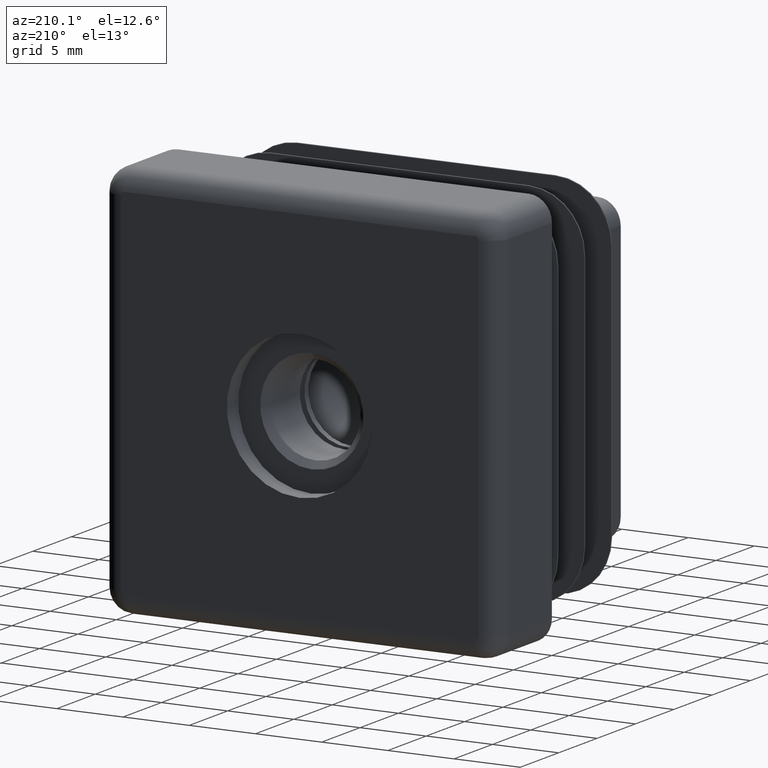
[diagram: clean part render]
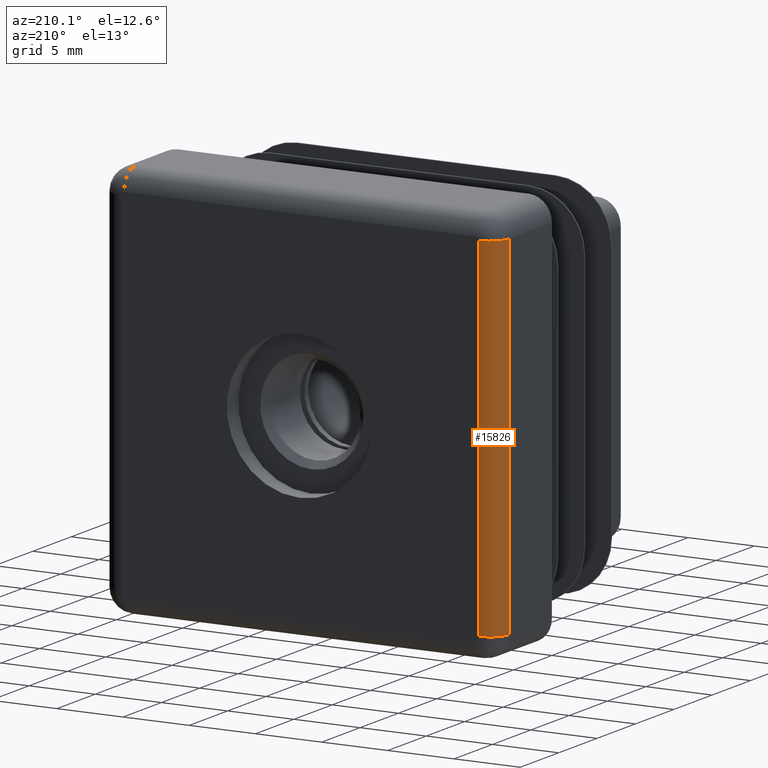
[diagram: same view with one face highlighted and labeled with its STEP entity id]
A machine part, auxiliary view. The second image highlights one B-rep face of the part: STEP entity #15826.
In plain terms, the highlighted cylindrical surface (edge-blend (fillet) strip) has radius 1.5 mm, axis along (-0, 0, -1).
Its self-contained STEP definition (entity closure, byte-faithful):
#1132 = CIRCLE ( 'NONE', #6553, 1.499999999999999556 ) ;
#1262 = ORIENTED_EDGE ( 'NONE', *, *, #1998, .T. ) ;
#1740 = EDGE_CURVE ( 'NONE', #11022, #22003, #8647, .T. ) ;
#1998 = EDGE_CURVE ( 'NONE', #11022, #6083, #1132, .T. ) ;
#2081 = AXIS2_PLACEMENT_3D ( 'NONE', #18814, #8476, #10205 ) ;
#2933 = DIRECTION ( 'NONE',  ( -2.312964634635742957E-16, -0.000000000000000000, -1.000000000000000000 ) ) ;
#4014 = CARTESIAN_POINT ( 'NONE',  ( -15.00000000000000178, 5.500000000000000000, -13.25000000000000178 ) ) ;
#4188 = DIRECTION ( 'NONE',  ( 2.312964634635742957E-16, -0.000000000000000000, 1.000000000000000000 ) ) ;
#4311 = EDGE_CURVE ( 'NONE', #22003, #21516, #16709, .T. ) ;
#4511 = EDGE_CURVE ( 'NONE', #21516, #6083, #12385, .T. ) ;
#4914 = FACE_OUTER_BOUND ( 'NONE', #14549, .T. ) ;
#5653 = AXIS2_PLACEMENT_3D ( 'NONE', #16683, #6492, #21839 ) ;
#6083 = VERTEX_POINT ( 'NONE', #4014 ) ;
#6481 = CARTESIAN_POINT ( 'NONE',  ( -14.99999999999999467, 5.500000000000000000, 13.24999999999999645 ) ) ;
#6492 = DIRECTION ( 'NONE',  ( -2.312964634635742957E-16, 0.000000000000000000, -1.000000000000000000 ) ) ;
#6553 = AXIS2_PLACEMENT_3D ( 'NONE', #22168, #13641, #6752 ) ;
#6700 = VECTOR ( 'NONE', #2933, 1000.000000000000000 ) ;
#6752 = DIRECTION ( 'NONE',  ( 1.000000000000000000, 0.000000000000000000, 0.000000000000000000 ) ) ;
#8476 = DIRECTION ( 'NONE',  ( -1.156482317317871725E-15, 0.000000000000000000, 1.000000000000000000 ) ) ;
#8647 = LINE ( 'NONE', #9467, #17602 ) ;
#9467 = CARTESIAN_POINT ( 'NONE',  ( -13.49999999999999467, 7.000000000000000000, 13.24999999999999645 ) ) ;
#10205 = DIRECTION ( 'NONE',  ( 1.000000000000000000, 0.000000000000000000, 1.156482317317871725E-15 ) ) ;
#10519 = CARTESIAN_POINT ( 'NONE',  ( -13.49999999999999467, 7.000000000000000000, 13.24999999999999822 ) ) ;
#11022 = VERTEX_POINT ( 'NONE', #21866 ) ;
#11351 = ORIENTED_EDGE ( 'NONE', *, *, #4511, .F. ) ;
#11914 = ORIENTED_EDGE ( 'NONE', *, *, #4311, .F. ) ;
#12385 = LINE ( 'NONE', #20116, #6700 ) ;
#13641 = DIRECTION ( 'NONE',  ( 0.000000000000000000, -0.000000000000000000, 1.000000000000000000 ) ) ;
#14549 = EDGE_LOOP ( 'NONE', ( #1262, #11351, #11914, #20091 ) ) ;
#15826 = ADVANCED_FACE ( 'NONE', ( #4914 ), #21098, .T. ) ;
#16683 = CARTESIAN_POINT ( 'NONE',  ( -13.49999999999999822, 5.500000000000000000, 3.122502256758252376E-15 ) ) ;
#16709 = CIRCLE ( 'NONE', #2081, 1.499999999999999556 ) ;
#17602 = VECTOR ( 'NONE', #4188, 1000.000000000000000 ) ;
#18814 = CARTESIAN_POINT ( 'NONE',  ( -13.49999999999999467, 5.500000000000000000, 13.24999999999999822 ) ) ;
#20091 = ORIENTED_EDGE ( 'NONE', *, *, #1740, .F. ) ;
#20116 = CARTESIAN_POINT ( 'NONE',  ( -15.00000000000000178, 5.500000000000000000, -13.25000000000000178 ) ) ;
#21098 = CYLINDRICAL_SURFACE ( 'NONE', #5653, 1.499999999999999556 ) ;
#21516 = VERTEX_POINT ( 'NONE', #6481 ) ;
#21839 = DIRECTION ( 'NONE',  ( -1.000000000000000000, 0.000000000000000000, 2.312964634635742957E-16 ) ) ;
#21866 = CARTESIAN_POINT ( 'NONE',  ( -13.50000000000000178, 7.000000000000000000, -13.25000000000000178 ) ) ;
#22003 = VERTEX_POINT ( 'NONE', #10519 ) ;
#22168 = CARTESIAN_POINT ( 'NONE',  ( -13.50000000000000178, 5.500000000000000000, -13.25000000000000178 ) ) ;